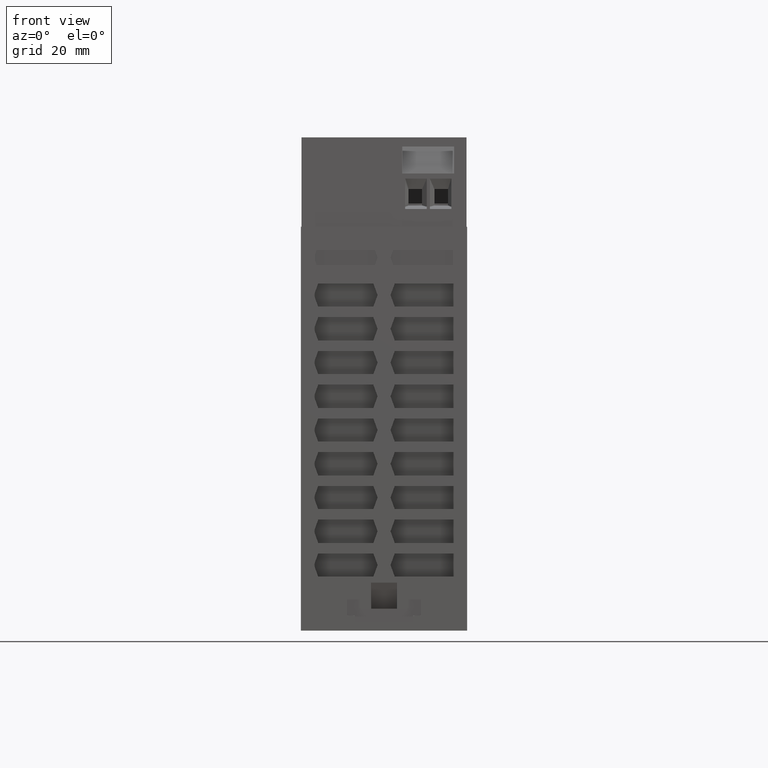
[diagram: clean part render]
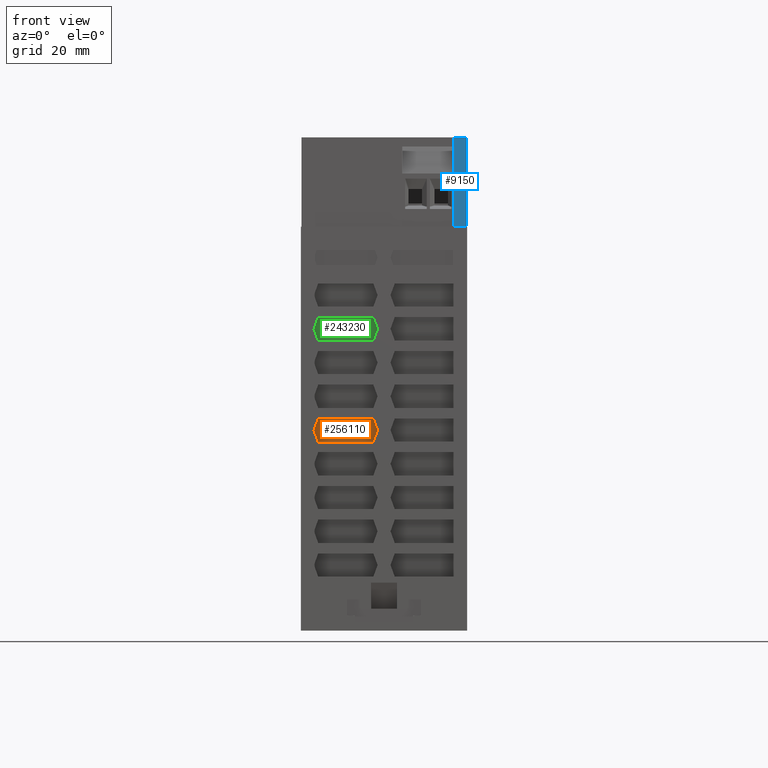
[diagram: same view with three faces highlighted in distinct colors, each labeled with its STEP entity id]
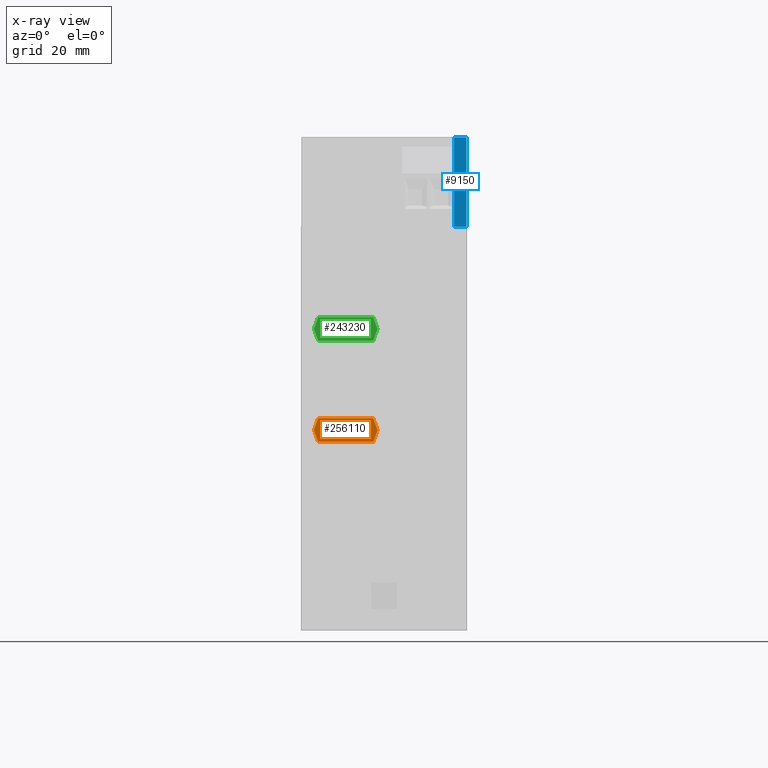
[diagram: x-ray of the same camera — body ghosted, the three highlighted faces saturated]
A machine part, front view with three faces highlighted in distinct colors.
The next image is the same camera in x-ray (body ghosted, the three faces saturated) — at least one of them is partly hidden behind the body in this view.
Their STEP definitions:

[orange] entity #256110 — the highlighted planar face has unit normal (-0, 1, 0.0087).
#185370=CARTESIAN_POINT('',(16.83487880955,71.8,-47.5904133168945));
#185380=DIRECTION('',(-0.,0.00872653549837375,0.999961923064171));
#185390=DIRECTION('',(1.,0.,0.));
#185400=AXIS2_PLACEMENT_3D('',#185370,#185380,#185390);
#185410=PLANE('',#185400);
#187600=CARTESIAN_POINT('',(2.068933027099,34.85,-47.267955552026));
#187610=VERTEX_POINT('',#187600);
#187640=CARTESIAN_POINT('',(0.,34.85,-47.267955552026));
#187650=DIRECTION('',(-1.,-1.38777878078145E-16,1.21109619426998E-18));
#187660=VECTOR('',#187650,1.);
#187670=LINE('',#187640,#187660);
#187680=CARTESIAN_POINT('',(12.681066972901,34.85,-47.267955552026));
#187690=VERTEX_POINT('',#187680);
#187700=EDGE_CURVE('',#187690,#187610,#187670,.T.);
#187980=CARTESIAN_POINT('',(1.24999999999997,32.6,-47.2483200994968));
#187990=VERTEX_POINT('',#187980);
#188020=CARTESIAN_POINT('',(15.5176331832365,71.8,-47.5904133168945));
#188030=DIRECTION('',(-0.342008643580674,-0.939661025496111,
0.00820029753763323));
#188040=VECTOR('',#188030,1.);
#188050=LINE('',#188020,#188040);
#188060=EDGE_CURVE('',#187610,#187990,#188050,.T.);
#188260=CARTESIAN_POINT('',(-0.767633183236573,71.8,-47.5904133168945));
#188270=DIRECTION('',(-0.342008643580674,0.939661025496111,
-0.0082002975376332));
#188280=VECTOR('',#188270,1.);
#188290=LINE('',#188260,#188280);
#188300=CARTESIAN_POINT('',(13.4999999999995,32.6000000000013,
-47.2483200994968));
#188310=VERTEX_POINT('',#188300);
#188320=EDGE_CURVE('',#188310,#187690,#188290,.T.);
#188600=CARTESIAN_POINT('',(2.06893302709901,30.35,-47.2286846469676));
#188610=VERTEX_POINT('',#188600);
#188640=CARTESIAN_POINT('',(-13.0176331832366,71.8,-47.5904133168945));
#188650=DIRECTION('',(0.342008643580674,-0.939661025496111,
0.0082002975376332));
#188660=VECTOR('',#188650,1.);
#188670=LINE('',#188640,#188660);
#188680=EDGE_CURVE('',#187990,#188610,#188670,.T.);
#255910=ORIENTED_EDGE('',*,*,#188680,.F.);
#255920=CARTESIAN_POINT('',(0.,30.35,-47.2286846469676));
#255930=DIRECTION('',(1.,1.38777878078145E-16,-1.21109619426998E-18));
#255940=VECTOR('',#255930,1.);
#255950=LINE('',#255920,#255940);
#255960=CARTESIAN_POINT('',(12.6810669729,30.35,-47.2286846469676));
#255970=VERTEX_POINT('',#255960);
#255980=EDGE_CURVE('',#188610,#255970,#255950,.T.);
#255990=ORIENTED_EDGE('',*,*,#255980,.F.);
#256000=CARTESIAN_POINT('',(27.7676331832356,71.8,-47.5904133168945));
#256010=DIRECTION('',(0.342008643580674,0.939661025496111,
-0.00820029753763323));
#256020=VECTOR('',#256010,1.);
#256030=LINE('',#256000,#256020);
#256040=EDGE_CURVE('',#255970,#188310,#256030,.T.);
#256050=ORIENTED_EDGE('',*,*,#256040,.F.);
#256060=ORIENTED_EDGE('',*,*,#188320,.F.);
#256070=ORIENTED_EDGE('',*,*,#187700,.F.);
#256080=ORIENTED_EDGE('',*,*,#188060,.F.);
#256090=EDGE_LOOP('',(#256080,#256070,#256060,#256050,#255990,#255910));
#256100=FACE_OUTER_BOUND('',#256090,.T.);
#256110=ADVANCED_FACE('',(#256100),#185410,.F.);

[blue] entity #9150 — the highlighted planar face has unit normal (-0, 1, 0).
#8760=CARTESIAN_POINT('',(15.9,71.8,-49.3904133168945));
#8770=DIRECTION('',(-8.32667268468867E-17,1.66533453693773E-16,1.));
#8780=DIRECTION('',(-1.,-1.54074395550981E-33,-8.32667268468867E-17));
#8790=AXIS2_PLACEMENT_3D('',#8760,#8770,#8780);
#8800=PLANE('',#8790);
#8810=CARTESIAN_POINT('',(0.,71.8,-49.3904133168945));
#8820=DIRECTION('',(-1.,-1.54074395550981E-33,-8.32667268468867E-17));
#8830=VECTOR('',#8820,1.);
#8840=LINE('',#8810,#8830);
#8850=CARTESIAN_POINT('',(-13.4999999999975,71.8,-49.3904133168945));
#8860=VERTEX_POINT('',#8850);
#8870=CARTESIAN_POINT('',(-15.9,71.8,-49.3904133168945));
#8880=VERTEX_POINT('',#8870);
#8890=EDGE_CURVE('',#8860,#8880,#8840,.T.);
#8900=ORIENTED_EDGE('',*,*,#8890,.T.);
#8910=CARTESIAN_POINT('',(-13.4999999999975,71.8,-49.3904133168945));
#8920=DIRECTION('',(1.44882214786882E-13,-1.,1.66533453693786E-16));
#8930=VECTOR('',#8920,1.);
#8940=LINE('',#8910,#8930);
#8950=CARTESIAN_POINT('',(-13.5,89.,-49.3904133168945));
#8960=VERTEX_POINT('',#8950);
#8970=EDGE_CURVE('',#8960,#8860,#8940,.T.);
#8980=ORIENTED_EDGE('',*,*,#8970,.T.);
#8990=CARTESIAN_POINT('',(0.,89.,-49.3904133168945));
#9000=DIRECTION('',(-1.,-0.,-8.32667268468867E-17));
#9010=VECTOR('',#9000,1.);
#9020=LINE('',#8990,#9010);
#9030=CARTESIAN_POINT('',(-15.9,89.,-49.3904133168945));
#9040=VERTEX_POINT('',#9030);
#9050=EDGE_CURVE('',#8960,#9040,#9020,.T.);
#9060=ORIENTED_EDGE('',*,*,#9050,.F.);
#9070=CARTESIAN_POINT('',(-15.9,71.8,-49.3904133168945));
#9080=DIRECTION('',(0.,-1.,1.66533453693773E-16));
#9090=VECTOR('',#9080,1.);
#9100=LINE('',#9070,#9090);
#9110=EDGE_CURVE('',#9040,#8880,#9100,.T.);
#9120=ORIENTED_EDGE('',*,*,#9110,.F.);
#9130=EDGE_LOOP('',(#9120,#9060,#8980,#8900));
#9140=FACE_OUTER_BOUND('',#9130,.T.);
#9150=ADVANCED_FACE('',(#9140),#8800,.F.);

[green] entity #243230 — the highlighted planar face has unit normal (-0, 1, 0.0087).
#185370=CARTESIAN_POINT('',(16.83487880955,71.8,-47.5904133168945));
#185380=DIRECTION('',(-0.,0.00872653549837375,0.999961923064171));
#185390=DIRECTION('',(1.,0.,0.));
#185400=AXIS2_PLACEMENT_3D('',#185370,#185380,#185390);
#185410=PLANE('',#185400);
#242730=CARTESIAN_POINT('',(-5.92021361504494,71.8,-47.5904133168945));
#242740=DIRECTION('',(0.342008643580674,-0.939661025496111,
0.0082002975376332));
#242750=VECTOR('',#242740,1.);
#242760=LINE('',#242730,#242750);
#242770=CARTESIAN_POINT('',(1.24999999999997,52.1,-47.4184940214166));
#242780=VERTEX_POINT('',#242770);
#242790=CARTESIAN_POINT('',(2.06893302709901,49.85,-47.3988585688874));
#242800=VERTEX_POINT('',#242790);
#242810=EDGE_CURVE('',#242780,#242800,#242760,.T.);
#242820=ORIENTED_EDGE('',*,*,#242810,.F.);
#242830=CARTESIAN_POINT('',(0.,49.85,-47.3988585688874));
#242840=DIRECTION('',(1.,1.38777878078145E-16,-1.21109619426998E-18));
#242850=VECTOR('',#242840,1.);
#242860=LINE('',#242830,#242850);
#242870=CARTESIAN_POINT('',(12.6810669729,49.85,-47.3988585688874));
#242880=VERTEX_POINT('',#242870);
#242890=EDGE_CURVE('',#242800,#242880,#242860,.T.);
#242900=ORIENTED_EDGE('',*,*,#242890,.F.);
#242910=CARTESIAN_POINT('',(20.6702136150439,71.8,-47.5904133168945));
#242920=DIRECTION('',(0.342008643580674,0.939661025496111,
-0.00820029753763323));
#242930=VECTOR('',#242920,1.);
#242940=LINE('',#242910,#242930);
#242950=CARTESIAN_POINT('',(13.4999999999995,52.1000000000013,
-47.4184940214166));
#242960=VERTEX_POINT('',#242950);
#242970=EDGE_CURVE('',#242880,#242960,#242940,.T.);
#242980=ORIENTED_EDGE('',*,*,#242970,.F.);
#242990=CARTESIAN_POINT('',(6.32978638495508,71.8,-47.5904133168945));
#243000=DIRECTION('',(-0.342008643580674,0.939661025496111,
-0.0082002975376332));
#243010=VECTOR('',#243000,1.);
#243020=LINE('',#242990,#243010);
#243030=CARTESIAN_POINT('',(12.6810669729008,54.3500000000003,
-47.4381294739458));
#243040=VERTEX_POINT('',#243030);
#243050=EDGE_CURVE('',#242960,#243040,#243020,.T.);
#243060=ORIENTED_EDGE('',*,*,#243050,.F.);
#243070=CARTESIAN_POINT('',(0.,54.3500000000003,-47.4381294739458));
#243080=DIRECTION('',(-1.,-1.38777878078145E-16,1.21109619426998E-18));
#243090=VECTOR('',#243080,1.);
#243100=LINE('',#243070,#243090);
#243110=CARTESIAN_POINT('',(2.06893302709911,54.3500000000003,
-47.4381294739458));
#243120=VERTEX_POINT('',#243110);
#243130=EDGE_CURVE('',#243040,#243120,#243100,.T.);
#243140=ORIENTED_EDGE('',*,*,#243130,.F.);
#243150=CARTESIAN_POINT('',(8.42021361504487,71.8,-47.5904133168945));
#243160=DIRECTION('',(-0.342008643580674,-0.939661025496111,
0.00820029753763323));
#243170=VECTOR('',#243160,1.);
#243180=LINE('',#243150,#243170);
#243190=EDGE_CURVE('',#243120,#242780,#243180,.T.);
#243200=ORIENTED_EDGE('',*,*,#243190,.F.);
#243210=EDGE_LOOP('',(#243200,#243140,#243060,#242980,#242900,#242820));
#243220=FACE_OUTER_BOUND('',#243210,.T.);
#243230=ADVANCED_FACE('',(#243220),#185410,.F.);